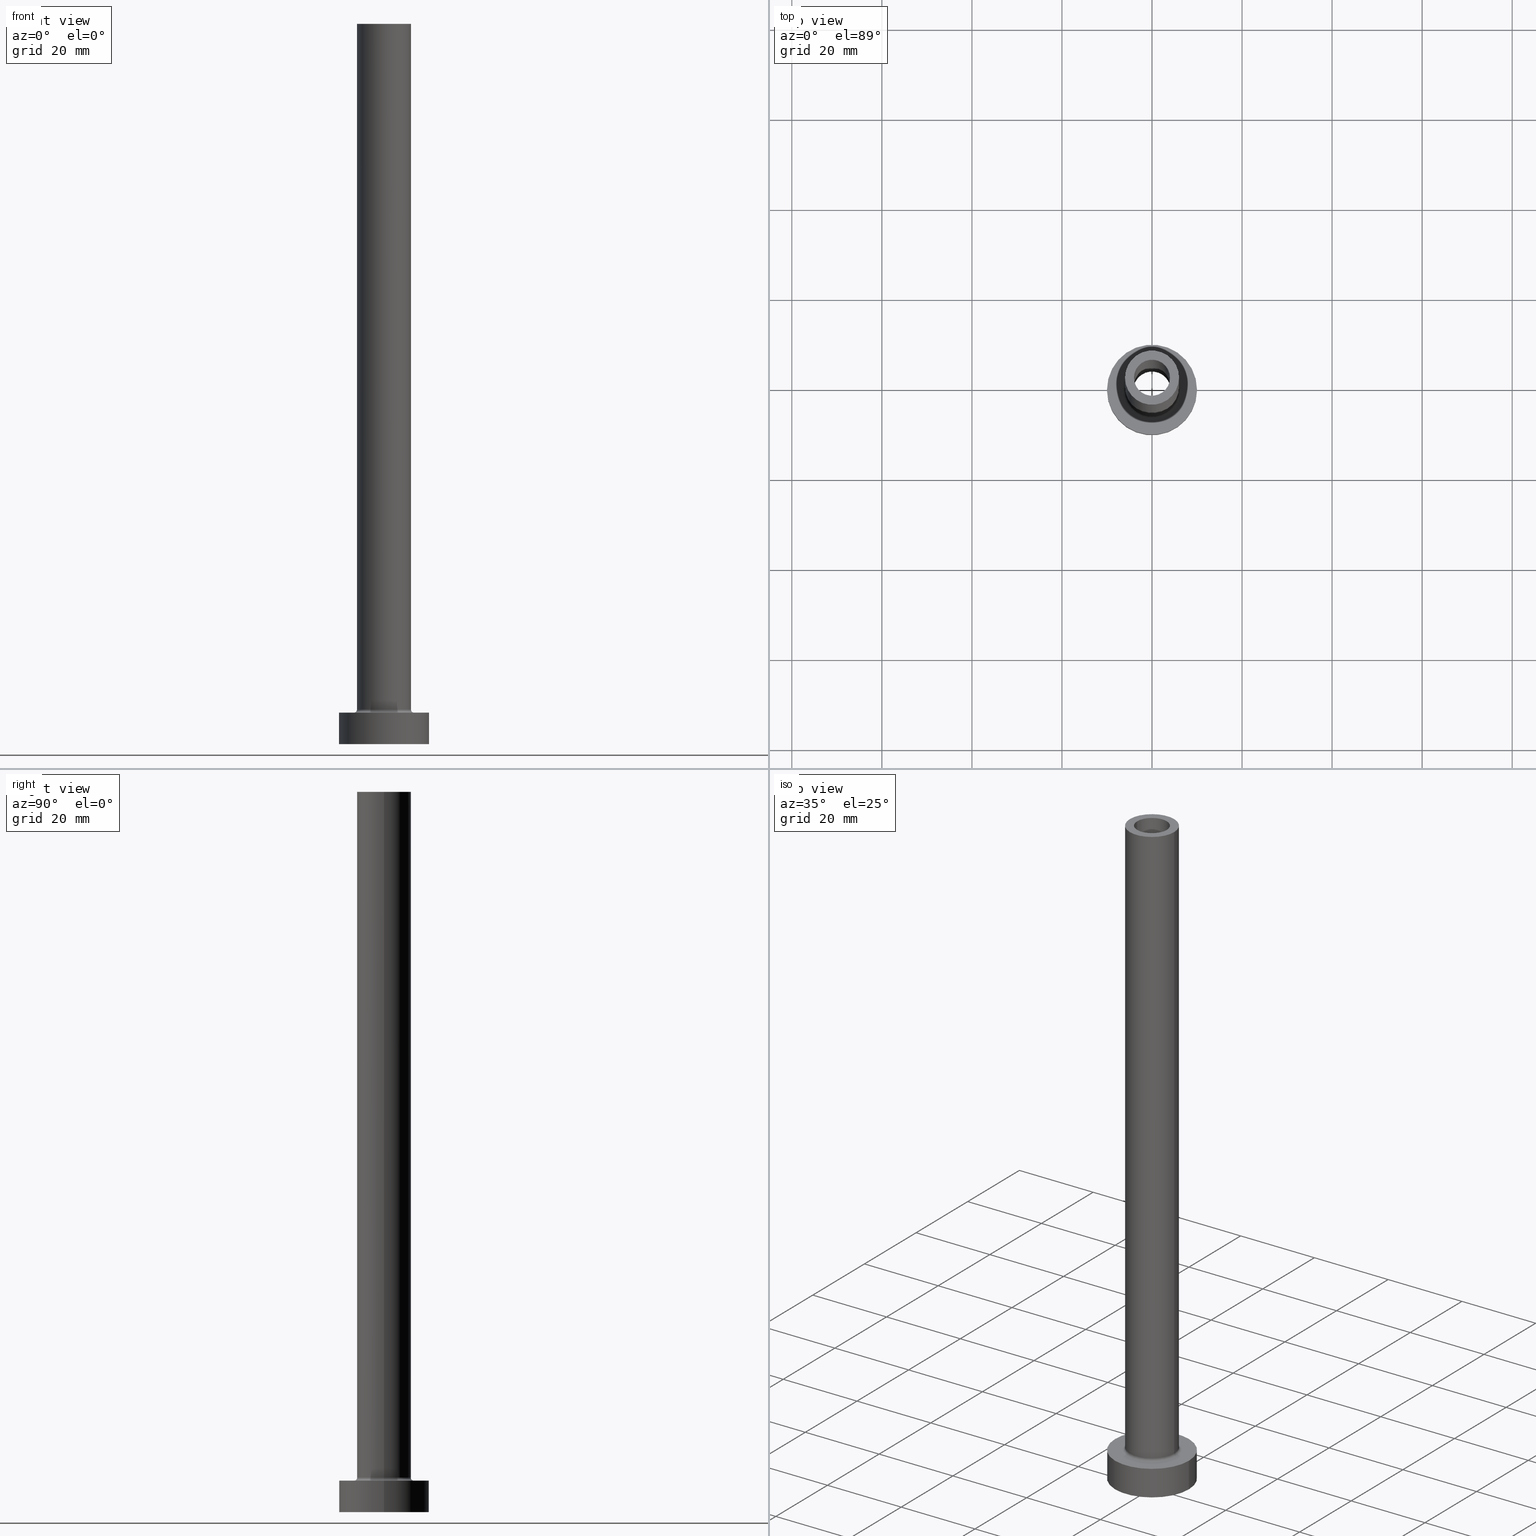
[diagram: canonical four-view strip — front | top / right | iso, engineering-drawing reading convention]
A machine part, canonical four-view strip (front | top / right | iso — engineering-drawing reading convention). The complete STEP part file that produces these views, byte-faithful:
ISO-10303-21;
HEADER;
FILE_DESCRIPTION (( 'STEP AP203' ),
    '1' );
FILE_NAME ('e0b1.STEP',
    '2023-02-13T09:10:37',
    ( '' ),
    ( '' ),
    'SwSTEP 2.0',
    'SolidWorks 2019',
    '' );
FILE_SCHEMA (( 'CONFIG_CONTROL_DESIGN' ));
ENDSEC;

DATA;
#1 = DIRECTION ( 'NONE',  ( 1.000000000000000000, 0.000000000000000000, -0.000000000000000000 ) ) ;
#2 = PERSON ( 'NEUR�EN�', 'NEUR�EN�', 'NEUR�EN�', ('NEUR�EN�'), ('NEUR�EN�'), ('NEUR�EN�') ) ;
#3 = DIRECTION ( 'NONE',  ( 0.000000000000000000, 0.000000000000000000, -1.000000000000000000 ) ) ;
#4 = CARTESIAN_POINT ( 'NONE',  ( -6.700000000000001066, 8.205133554287267548E-16, 7.700000000000012612 ) ) ;
#5 = ORIENTED_EDGE ( 'NONE', *, *, #381, .T. ) ;
#6 = VECTOR ( 'NONE', #93, 1000.000000000000000 ) ;
#7 = PERSON_AND_ORGANIZATION_ROLE ( 'design_owner' ) ;
#8 = ORIENTED_EDGE ( 'NONE', *, *, #305, .F. ) ;
#9 = APPLICATION_PROTOCOL_DEFINITION ( 'international standard', 'config_control_design', 1994, #273 ) ;
#10 = ADVANCED_FACE ( 'NONE', ( #119 ), #366, .T. ) ;
#11 = CYLINDRICAL_SURFACE ( 'NONE', #160, 6.000000000000000888 ) ;
#12 = CARTESIAN_POINT ( 'NONE',  ( 0.000000000000000000, 0.000000000000000000, 160.0000000000000000 ) ) ;
#13 = ORIENTED_EDGE ( 'NONE', *, *, #113, .T. ) ;
#14 = ADVANCED_FACE ( 'NONE', ( #341 ), #11, .T. ) ;
#15 = AXIS2_PLACEMENT_3D ( 'NONE', #347, #197, #133 ) ;
#16 = PERSON_AND_ORGANIZATION ( #2, #345 ) ;
#17 = CARTESIAN_POINT ( 'NONE',  ( 0.000000000000000000, 0.000000000000000000, 160.0000000000000000 ) ) ;
#18 = VERTEX_POINT ( 'NONE', #268 ) ;
#19 = ADVANCED_FACE ( 'NONE', ( #373 ), #227, .F. ) ;
#20 = CARTESIAN_POINT ( 'NONE',  ( -4.150000000000000355, 0.000000000000000000, 115.0000000000000000 ) ) ;
#21 = ORIENTED_EDGE ( 'NONE', *, *, #127, .F. ) ;
#22 = CARTESIAN_POINT ( 'NONE',  ( 10.00000000000000000, 1.224646799147353256E-15, 7.000000000000000000 ) ) ;
#23 = ORIENTED_EDGE ( 'NONE', *, *, #298, .F. ) ;
#24 = DIRECTION ( 'NONE',  ( 0.000000000000000000, 0.000000000000000000, 1.000000000000000000 ) ) ;
#25 = ORIENTED_EDGE ( 'NONE', *, *, #333, .T. ) ;
#26 = FACE_OUTER_BOUND ( 'NONE', #56, .T. ) ;
#27 = ORIENTED_EDGE ( 'NONE', *, *, #265, .T. ) ;
#28 = EDGE_CURVE ( 'NONE', #66, #448, #280, .T. ) ;
#29 = AXIS2_PLACEMENT_3D ( 'NONE', #296, #248, #148 ) ;
#30 = CARTESIAN_POINT ( 'NONE',  ( 0.000000000000000000, 0.000000000000000000, 7.000000000000000000 ) ) ;
#31 = ADVANCED_BREP_SHAPE_REPRESENTATION ( 'e0b1', ( #391, #329 ), #307 ) ;
#32 = LOCAL_TIME ( 10, 10, 37.00000000000000000, #367 ) ;
#33 = DIRECTION ( 'NONE',  ( 1.000000000000000000, 0.000000000000000000, 0.000000000000000000 ) ) ;
#34 = PRODUCT ( 'e0b1', 'e0b1', '', ( #79 ) ) ;
#35 = DIRECTION ( 'NONE',  ( 0.000000000000000000, 0.000000000000000000, 1.000000000000000000 ) ) ;
#36 = FACE_BOUND ( 'NONE', #194, .T. ) ;
#37 = CIRCLE ( 'NONE', #177, 4.000000000000000000 ) ;
#38 = CIRCLE ( 'NONE', #121, 6.000000000000000888 ) ;
#39 = CC_DESIGN_SECURITY_CLASSIFICATION ( #200, ( #324 ) ) ;
#40 = CALENDAR_DATE ( 2023, 13, 2 ) ;
#41 = EDGE_CURVE ( 'NONE', #332, #313, #269, .T. ) ;
#42 = DIRECTION ( 'NONE',  ( -0.000000000000000000, -0.000000000000000000, -1.000000000000000000 ) ) ;
#43 = ORIENTED_EDGE ( 'NONE', *, *, #101, .T. ) ;
#44 = APPROVAL_DATE_TIME ( #78, #300 ) ;
#45 = CARTESIAN_POINT ( 'NONE',  ( -6.700000000000001066, 8.205133554287267548E-16, 7.000000000000006217 ) ) ;
#46 = VERTEX_POINT ( 'NONE', #88 ) ;
#47 = AXIS2_PLACEMENT_3D ( 'NONE', #393, #65, #357 ) ;
#48 = FACE_OUTER_BOUND ( 'NONE', #129, .T. ) ;
#49 = ORIENTED_EDGE ( 'NONE', *, *, #265, .F. ) ;
#50 = ADVANCED_FACE ( 'NONE', ( #187 ), #354, .T. ) ;
#51 = DIRECTION ( 'NONE',  ( -1.000000000000000000, 0.000000000000000000, 0.000000000000000000 ) ) ;
#52 = VERTEX_POINT ( 'NONE', #320 ) ;
#53 = APPROVAL_STATUS ( 'not_yet_approved' ) ;
#54 = FACE_OUTER_BOUND ( 'NONE', #299, .T. ) ;
#55 = CARTESIAN_POINT ( 'NONE',  ( -10.00000000000000000, 0.000000000000000000, 7.000000000000000000 ) ) ;
#56 = EDGE_LOOP ( 'NONE', ( #154, #402 ) ) ;
#57 = LINE ( 'NONE', #22, #370 ) ;
#58 = ORIENTED_EDGE ( 'NONE', *, *, #404, .T. ) ;
#59 = CARTESIAN_POINT ( 'NONE',  ( 0.000000000000000000, 0.000000000000000000, 0.000000000000000000 ) ) ;
#60 = ORIENTED_EDGE ( 'NONE', *, *, #404, .F. ) ;
#61 = CIRCLE ( 'NONE', #421, 4.150000000000000355 ) ;
#62 = AXIS2_PLACEMENT_3D ( 'NONE', #123, #272, #409 ) ;
#63 = DIRECTION ( 'NONE',  ( 0.000000000000000000, 0.000000000000000000, 1.000000000000000000 ) ) ;
#64 = ORIENTED_EDGE ( 'NONE', *, *, #262, .F. ) ;
#65 = DIRECTION ( 'NONE',  ( 0.000000000000000000, 0.000000000000000000, 1.000000000000000000 ) ) ;
#66 = VERTEX_POINT ( 'NONE', #162 ) ;
#67 = DIRECTION ( 'NONE',  ( 1.000000000000000000, 0.000000000000000000, 0.000000000000000000 ) ) ;
#68 = CIRCLE ( 'NONE', #223, 4.150000000000000355 ) ;
#69 = CARTESIAN_POINT ( 'NONE',  ( -6.000000000000000888, 0.000000000000000000, 160.0000000000000000 ) ) ;
#70 = AXIS2_PLACEMENT_3D ( 'NONE', #169, #167, #136 ) ;
#71 = ADVANCED_FACE ( 'NONE', ( #351, #205 ), #164, .F. ) ;
#72 = FACE_OUTER_BOUND ( 'NONE', #204, .T. ) ;
#73 = CARTESIAN_POINT ( 'NONE',  ( -6.000000000000000888, 0.000000000000000000, 160.0000000000000000 ) ) ;
#74 = FACE_OUTER_BOUND ( 'NONE', #387, .T. ) ;
#75 = CIRCLE ( 'NONE', #196, 6.700000000000001066 ) ;
#76 = DIRECTION ( 'NONE',  ( 0.000000000000000000, -1.000000000000000000, 0.000000000000000000 ) ) ;
#77 = VERTEX_POINT ( 'NONE', #346 ) ;
#78 = DATE_AND_TIME ( #213, #32 ) ;
#79 = MECHANICAL_CONTEXT ( 'NONE', #418, 'mechanical' ) ;
#80 = CARTESIAN_POINT ( 'NONE',  ( 0.000000000000000000, 0.000000000000000000, 160.0000000000000000 ) ) ;
#81 = UNCERTAINTY_MEASURE_WITH_UNIT (LENGTH_MEASURE( 1.000000000000000082E-05 ), #117, 'distance_accuracy_value', 'NONE');
#82 = CALENDAR_DATE ( 2023, 13, 2 ) ;
#83 = ORIENTED_EDGE ( 'NONE', *, *, #28, .T. ) ;
#84 = TOROIDAL_SURFACE ( 'NONE', #336, 6.700000000000001066, 0.6999999999999999556 ) ;
#85 = ADVANCED_FACE ( 'NONE', ( #125 ), #309, .F. ) ;
#86 = CARTESIAN_POINT ( 'NONE',  ( -10.00000000000000000, 0.000000000000000000, 0.000000000000000000 ) ) ;
#87 = APPROVAL_DATE_TIME ( #195, #396 ) ;
#88 = CARTESIAN_POINT ( 'NONE',  ( 4.000000000000000000, 4.898587196589411843E-16, 115.0000000000000000 ) ) ;
#89 = CARTESIAN_POINT ( 'NONE',  ( 4.150000000000000355, 5.082284216461515156E-16, 126.7379725676967013 ) ) ;
#90 = ORIENTED_EDGE ( 'NONE', *, *, #199, .T. ) ;
#91 = AXIS2_PLACEMENT_3D ( 'NONE', #139, #245, #318 ) ;
#92 = AXIS2_PLACEMENT_3D ( 'NONE', #331, #35, #358 ) ;
#93 = DIRECTION ( 'NONE',  ( -0.000000000000000000, -0.000000000000000000, -1.000000000000000000 ) ) ;
#94 = ORIENTED_EDGE ( 'NONE', *, *, #428, .F. ) ;
#95 = FACE_OUTER_BOUND ( 'NONE', #384, .T. ) ;
#96 = CC_DESIGN_DATE_AND_TIME_ASSIGNMENT ( #389, #180, ( #200 ) ) ;
#97 = ORIENTED_EDGE ( 'NONE', *, *, #199, .F. ) ;
#98 = DIRECTION ( 'NONE',  ( 1.000000000000000000, 0.000000000000000000, 0.000000000000000000 ) ) ;
#99 = CIRCLE ( 'NONE', #229, 10.00000000000000000 ) ;
#100 = AXIS2_PLACEMENT_3D ( 'NONE', #369, #233, #343 ) ;
#101 = EDGE_CURVE ( 'NONE', #66, #382, #38, .T. ) ;
#102 = FACE_BOUND ( 'NONE', #446, .T. ) ;
#103 = ORIENTED_EDGE ( 'NONE', *, *, #113, .F. ) ;
#104 = CARTESIAN_POINT ( 'NONE',  ( 0.000000000000000000, 0.000000000000000000, 0.000000000000000000 ) ) ;
#105 = DIRECTION ( 'NONE',  ( 0.000000000000000000, 0.000000000000000000, 1.000000000000000000 ) ) ;
#106 = EDGE_CURVE ( 'NONE', #407, #304, #109, .T. ) ;
#107 = AXIS2_PLACEMENT_3D ( 'NONE', #436, #76, #152 ) ;
#108 = DIRECTION ( 'NONE',  ( -0.000000000000000000, -0.000000000000000000, -1.000000000000000000 ) ) ;
#109 = CIRCLE ( 'NONE', #423, 10.00000000000000000 ) ;
#110 = DIRECTION ( 'NONE',  ( 1.000000000000000000, 0.000000000000000000, 0.000000000000000000 ) ) ;
#111 = CARTESIAN_POINT ( 'NONE',  ( 0.000000000000000000, 0.000000000000000000, 160.0000000000000000 ) ) ;
#112 = CYLINDRICAL_SURFACE ( 'NONE', #287, 4.150000000000000355 ) ;
#113 = EDGE_CURVE ( 'NONE', #173, #448, #75, .T. ) ;
#114 = CC_DESIGN_APPROVAL ( #396, ( #324 ) ) ;
#115 = EDGE_CURVE ( 'NONE', #304, #407, #257, .T. ) ;
#116 = ORIENTED_EDGE ( 'NONE', *, *, #163, .F. ) ;
#117 =( LENGTH_UNIT ( ) NAMED_UNIT ( * ) SI_UNIT ( .MILLI., .METRE. ) );
#118 = ORIENTED_EDGE ( 'NONE', *, *, #170, .T. ) ;
#119 = FACE_OUTER_BOUND ( 'NONE', #209, .T. ) ;
#120 = VECTOR ( 'NONE', #416, 1000.000000000000000 ) ;
#121 = AXIS2_PLACEMENT_3D ( 'NONE', #419, #24, #414 ) ;
#122 = COORDINATED_UNIVERSAL_TIME_OFFSET ( 1, 0, .AHEAD. ) ;
#123 = CARTESIAN_POINT ( 'NONE',  ( 0.000000000000000000, 0.000000000000000000, 160.0000000000000000 ) ) ;
#124 = DESIGN_CONTEXT ( 'detailed design', #273, 'design' ) ;
#125 = FACE_OUTER_BOUND ( 'NONE', #454, .T. ) ;
#126 = EDGE_LOOP ( 'NONE', ( #27, #247 ) ) ;
#127 = EDGE_CURVE ( 'NONE', #439, #407, #239, .T. ) ;
#128 = CARTESIAN_POINT ( 'NONE',  ( 6.700000000000001066, 0.000000000000000000, 7.000000000000006217 ) ) ;
#129 = EDGE_LOOP ( 'NONE', ( #279, #348, #371, #206 ) ) ;
#130 = CIRCLE ( 'NONE', #315, 6.700000000000001066 ) ;
#131 = AXIS2_PLACEMENT_3D ( 'NONE', #285, #451, #312 ) ;
#132 = CC_DESIGN_PERSON_AND_ORGANIZATION_ASSIGNMENT ( #16, #310, ( #324 ) ) ;
#133 = DIRECTION ( 'NONE',  ( 1.000000000000000000, 0.000000000000000000, -0.000000000000000000 ) ) ;
#134 = ADVANCED_FACE ( 'NONE', ( #283 ), #445, .F. ) ;
#135 = VERTEX_POINT ( 'NONE', #453 ) ;
#136 = DIRECTION ( 'NONE',  ( 1.000000000000000000, 0.000000000000000000, -0.000000000000000000 ) ) ;
#137 = ORIENTED_EDGE ( 'NONE', *, *, #138, .F. ) ;
#138 = EDGE_CURVE ( 'NONE', #439, #321, #243, .T. ) ;
#139 = CARTESIAN_POINT ( 'NONE',  ( 0.000000000000000000, 0.000000000000000000, 0.000000000000000000 ) ) ;
#140 = EDGE_LOOP ( 'NONE', ( #403, #118, #282, #94 ) ) ;
#141 = VECTOR ( 'NONE', #108, 1000.000000000000000 ) ;
#142 = DIRECTION ( 'NONE',  ( 0.000000000000000000, 0.000000000000000000, 1.000000000000000000 ) ) ;
#143 = CARTESIAN_POINT ( 'NONE',  ( 0.000000000000000000, 0.000000000000000000, 160.0000000000000000 ) ) ;
#144 = PRODUCT_DEFINITION_SHAPE ( 'NONE', 'NONE',  #146 ) ;
#145 = DIRECTION ( 'NONE',  ( -0.000000000000000000, -0.000000000000000000, -1.000000000000000000 ) ) ;
#146 = PRODUCT_DEFINITION ( 'NEZN�M�', '', #324, #124 ) ;
#147 = APPROVAL ( #399, 'NEUR�EN�' ) ;
#148 = DIRECTION ( 'NONE',  ( 1.000000000000000000, 0.000000000000000000, 0.000000000000000000 ) ) ;
#149 = DIRECTION ( 'NONE',  ( 0.000000000000000000, 0.000000000000000000, 1.000000000000000000 ) ) ;
#150 = DIRECTION ( 'NONE',  ( 1.224646799147353207E-16, 1.000000000000000000, -0.000000000000000000 ) ) ;
#151 = SHAPE_DEFINITION_REPRESENTATION ( #144, #31 ) ;
#152 = DIRECTION ( 'NONE',  ( 0.000000000000000000, 0.000000000000000000, -1.000000000000000000 ) ) ;
#153 = CIRCLE ( 'NONE', #406, 6.000000000000000888 ) ;
#154 = ORIENTED_EDGE ( 'NONE', *, *, #106, .F. ) ;
#155 = CLOSED_SHELL ( 'NONE', ( #134, #19, #214, #10, #50, #270, #156, #293, #14, #355, #85, #397, #71, #410 ) ) ;
#156 = ADVANCED_FACE ( 'NONE', ( #102, #54 ), #277, .T. ) ;
#157 = DIRECTION ( 'NONE',  ( -1.000000000000000000, 0.000000000000000000, 0.000000000000000000 ) ) ;
#158 = CARTESIAN_POINT ( 'NONE',  ( -4.000000000000000000, 0.000000000000000000, 115.0000000000000000 ) ) ;
#159 = VECTOR ( 'NONE', #447, 1000.000000000000000 ) ;
#160 = AXIS2_PLACEMENT_3D ( 'NONE', #80, #375, #157 ) ;
#161 = PERSON_AND_ORGANIZATION_ROLE ( 'creator' ) ;
#162 = CARTESIAN_POINT ( 'NONE',  ( -6.000000000000000888, 0.000000000000000000, 7.700000000000012612 ) ) ;
#163 = EDGE_CURVE ( 'NONE', #321, #304, #57, .T. ) ;
#164 = PLANE ( 'NONE',  #70 ) ;
#165 = ORIENTED_EDGE ( 'NONE', *, *, #41, .T. ) ;
#166 = CC_DESIGN_DATE_AND_TIME_ASSIGNMENT ( #228, #440, ( #146 ) ) ;
#167 = DIRECTION ( 'NONE',  ( 0.000000000000000000, 0.000000000000000000, 1.000000000000000000 ) ) ;
#168 = ORIENTED_EDGE ( 'NONE', *, *, #101, .F. ) ;
#169 = CARTESIAN_POINT ( 'NONE',  ( 0.000000000000000000, 0.000000000000000000, 115.0000000000000000 ) ) ;
#170 = EDGE_CURVE ( 'NONE', #135, #77, #450, .T. ) ;
#171 = VERTEX_POINT ( 'NONE', #201 ) ;
#172 = DIRECTION ( 'NONE',  ( 0.000000000000000000, 0.000000000000000000, -1.000000000000000000 ) ) ;
#173 = VERTEX_POINT ( 'NONE', #128 ) ;
#174 = CARTESIAN_POINT ( 'NONE',  ( 0.000000000000000000, 0.000000000000000000, 160.0000000000000000 ) ) ;
#175 = EDGE_CURVE ( 'NONE', #18, #52, #237, .T. ) ;
#176 = VERTEX_POINT ( 'NONE', #20 ) ;
#177 = AXIS2_PLACEMENT_3D ( 'NONE', #111, #431, #362 ) ;
#178 = CARTESIAN_POINT ( 'NONE',  ( 10.00000000000000000, 1.224646799147353256E-15, 7.000000000000000000 ) ) ;
#179 = DIRECTION ( 'NONE',  ( 1.000000000000000000, 0.000000000000000000, 0.000000000000000000 ) ) ;
#180 = DATE_TIME_ROLE ( 'classification_date' ) ;
#181 = CC_DESIGN_PERSON_AND_ORGANIZATION_ASSIGNMENT ( #344, #161, ( #324 ) ) ;
#182 = CARTESIAN_POINT ( 'NONE',  ( 4.000000000000000000, 4.898587196589411843E-16, 160.0000000000000000 ) ) ;
#183 = CC_DESIGN_APPROVAL ( #147, ( #146 ) ) ;
#184 = DIRECTION ( 'NONE',  ( 0.000000000000000000, 0.000000000000000000, -1.000000000000000000 ) ) ;
#185 = CC_DESIGN_APPROVAL ( #300, ( #200 ) ) ;
#186 = DIRECTION ( 'NONE',  ( 1.000000000000000000, 0.000000000000000000, 0.000000000000000000 ) ) ;
#187 = FACE_OUTER_BOUND ( 'NONE', #437, .T. ) ;
#188 = CARTESIAN_POINT ( 'NONE',  ( 6.000000000000000888, 7.347880794884120722E-16, 7.700000000000012612 ) ) ;
#189 = ORIENTED_EDGE ( 'NONE', *, *, #249, .F. ) ;
#190 = VECTOR ( 'NONE', #184, 1000.000000000000000 ) ;
#191 = PERSON_AND_ORGANIZATION ( #2, #345 ) ;
#192 = DIRECTION ( 'NONE',  ( -0.000000000000000000, -0.000000000000000000, -1.000000000000000000 ) ) ;
#193 = CARTESIAN_POINT ( 'NONE',  ( 0.000000000000000000, 0.000000000000000000, 7.000000000000000000 ) ) ;
#194 = EDGE_LOOP ( 'NONE', ( #412, #264 ) ) ;
#195 = DATE_AND_TIME ( #271, #400 ) ;
#196 = AXIS2_PLACEMENT_3D ( 'NONE', #311, #208, #98 ) ;
#197 = DIRECTION ( 'NONE',  ( 0.000000000000000000, 0.000000000000000000, 1.000000000000000000 ) ) ;
#198 = CIRCLE ( 'NONE', #29, 4.150000000000000355 ) ;
#199 = EDGE_CURVE ( 'NONE', #18, #452, #314, .T. ) ;
#200 = SECURITY_CLASSIFICATION ( '', '', #374 ) ;
#201 = CARTESIAN_POINT ( 'NONE',  ( -4.150000000000000355, 0.000000000000000000, 0.000000000000000000 ) ) ;
#202 = ORIENTED_EDGE ( 'NONE', *, *, #381, .F. ) ;
#203 = DIRECTION ( 'NONE',  ( 0.000000000000000000, 0.000000000000000000, 1.000000000000000000 ) ) ;
#204 = EDGE_LOOP ( 'NONE', ( #116, #137, #339, #284 ) ) ;
#205 = FACE_OUTER_BOUND ( 'NONE', #415, .T. ) ;
#206 = ORIENTED_EDGE ( 'NONE', *, *, #276, .T. ) ;
#207 = CIRCLE ( 'NONE', #47, 4.150000000000000355 ) ;
#208 = DIRECTION ( 'NONE',  ( -0.000000000000000000, -0.000000000000000000, -1.000000000000000000 ) ) ;
#209 = EDGE_LOOP ( 'NONE', ( #23, #441, #5, #238 ) ) ;
#210 = PLANE ( 'NONE',  #461 ) ;
#211 = ORIENTED_EDGE ( 'NONE', *, *, #175, .T. ) ;
#212 = DIRECTION ( 'NONE',  ( -0.000000000000000000, -0.000000000000000000, -1.000000000000000000 ) ) ;
#213 = CALENDAR_DATE ( 2023, 13, 2 ) ;
#214 = ADVANCED_FACE ( 'NONE', ( #95 ), #84, .F. ) ;
#215 = AXIS2_PLACEMENT_3D ( 'NONE', #383, #172, #242 ) ;
#216 = AXIS2_PLACEMENT_3D ( 'NONE', #230, #192, #261 ) ;
#217 = DIRECTION ( 'NONE',  ( 1.000000000000000000, 0.000000000000000000, -0.000000000000000000 ) ) ;
#218 = PERSON_AND_ORGANIZATION ( #2, #345 ) ;
#219 = DIRECTION ( 'NONE',  ( 0.000000000000000000, 0.000000000000000000, 1.000000000000000000 ) ) ;
#220 = EDGE_CURVE ( 'NONE', #46, #452, #394, .T. ) ;
#221 = DIRECTION ( 'NONE',  ( 0.000000000000000000, 0.000000000000000000, 1.000000000000000000 ) ) ;
#222 = EDGE_CURVE ( 'NONE', #52, #18, #37, .T. ) ;
#223 = AXIS2_PLACEMENT_3D ( 'NONE', #360, #145, #292 ) ;
#224 =( NAMED_UNIT ( * ) SI_UNIT ( $, .STERADIAN. ) SOLID_ANGLE_UNIT ( ) );
#225 = ORIENTED_EDGE ( 'NONE', *, *, #298, .T. ) ;
#226 = DIRECTION ( 'NONE',  ( 0.000000000000000000, 0.000000000000000000, -1.000000000000000000 ) ) ;
#227 = CYLINDRICAL_SURFACE ( 'NONE', #100, 4.150000000000000355 ) ;
#228 = DATE_AND_TIME ( #82, #443 ) ;
#229 = AXIS2_PLACEMENT_3D ( 'NONE', #30, #455, #33 ) ;
#230 = CARTESIAN_POINT ( 'NONE',  ( 0.000000000000000000, 0.000000000000000000, 160.0000000000000000 ) ) ;
#231 = EDGE_CURVE ( 'NONE', #176, #135, #198, .T. ) ;
#232 =( NAMED_UNIT ( * ) PLANE_ANGLE_UNIT ( ) SI_UNIT ( $, .RADIAN. ) );
#233 = DIRECTION ( 'NONE',  ( 0.000000000000000000, 0.000000000000000000, -1.000000000000000000 ) ) ;
#234 = APPROVAL_ROLE ( '' ) ;
#235 = ORIENTED_EDGE ( 'NONE', *, *, #456, .F. ) ;
#236 = CARTESIAN_POINT ( 'NONE',  ( 0.000000000000000000, 0.000000000000000000, 7.700000000000012612 ) ) ;
#237 = CIRCLE ( 'NONE', #430, 4.000000000000000000 ) ;
#238 = ORIENTED_EDGE ( 'NONE', *, *, #333, .F. ) ;
#239 = LINE ( 'NONE', #55, #6 ) ;
#240 = DIRECTION ( 'NONE',  ( 1.000000000000000000, 0.000000000000000000, 0.000000000000000000 ) ) ;
#241 = ORIENTED_EDGE ( 'NONE', *, *, #138, .T. ) ;
#242 = DIRECTION ( 'NONE',  ( -1.000000000000000000, 0.000000000000000000, 0.000000000000000000 ) ) ;
#243 = CIRCLE ( 'NONE', #376, 10.00000000000000000 ) ;
#244 = APPROVAL_PERSON_ORGANIZATION ( #408, #396, #234 ) ;
#245 = DIRECTION ( 'NONE',  ( 0.000000000000000000, 0.000000000000000000, 1.000000000000000000 ) ) ;
#246 = PERSON_AND_ORGANIZATION_ROLE ( 'classification_officer' ) ;
#247 = ORIENTED_EDGE ( 'NONE', *, *, #220, .T. ) ;
#248 = DIRECTION ( 'NONE',  ( 0.000000000000000000, 0.000000000000000000, 1.000000000000000000 ) ) ;
#249 = EDGE_CURVE ( 'NONE', #321, #439, #99, .T. ) ;
#250 = DIRECTION ( 'NONE',  ( 0.000000000000000000, 0.000000000000000000, 1.000000000000000000 ) ) ;
#251 = CC_DESIGN_PERSON_AND_ORGANIZATION_ASSIGNMENT ( #191, #340, ( #146 ) ) ;
#252 = CIRCLE ( 'NONE', #386, 6.000000000000000888 ) ;
#253 = CARTESIAN_POINT ( 'NONE',  ( 0.000000000000000000, 0.000000000000000000, 7.700000000000012612 ) ) ;
#254 = APPROVAL_PERSON_ORGANIZATION ( #426, #300, #326 ) ;
#255 = DIRECTION ( 'NONE',  ( -0.000000000000000000, -0.000000000000000000, -1.000000000000000000 ) ) ;
#256 = PERSON_AND_ORGANIZATION ( #2, #345 ) ;
#257 = CIRCLE ( 'NONE', #91, 10.00000000000000000 ) ;
#258 = VECTOR ( 'NONE', #212, 1000.000000000000000 ) ;
#259 = CYLINDRICAL_SURFACE ( 'NONE', #294, 4.000000000000000000 ) ;
#260 = ORIENTED_EDGE ( 'NONE', *, *, #115, .T. ) ;
#261 = DIRECTION ( 'NONE',  ( -1.000000000000000000, 0.000000000000000000, 0.000000000000000000 ) ) ;
#262 = EDGE_CURVE ( 'NONE', #52, #46, #429, .T. ) ;
#263 = DIRECTION ( 'NONE',  ( 1.000000000000000000, 0.000000000000000000, 0.000000000000000000 ) ) ;
#264 = ORIENTED_EDGE ( 'NONE', *, *, #222, .F. ) ;
#265 = EDGE_CURVE ( 'NONE', #452, #46, #359, .T. ) ;
#266 = CARTESIAN_POINT ( 'NONE',  ( -4.150000000000000355, 0.000000000000000000, 126.7379725676967013 ) ) ;
#267 = APPROVAL_PERSON_ORGANIZATION ( #256, #147, #301 ) ;
#268 = CARTESIAN_POINT ( 'NONE',  ( -4.000000000000000000, 0.000000000000000000, 160.0000000000000000 ) ) ;
#269 = CIRCLE ( 'NONE', #62, 6.000000000000000888 ) ;
#270 = ADVANCED_FACE ( 'NONE', ( #72 ), #425, .T. ) ;
#271 = CALENDAR_DATE ( 2023, 13, 2 ) ;
#272 = DIRECTION ( 'NONE',  ( 0.000000000000000000, 0.000000000000000000, 1.000000000000000000 ) ) ;
#273 = APPLICATION_CONTEXT ( 'configuration controlled 3d designs of mechanical parts and assemblies' ) ;
#274 = DIRECTION ( 'NONE',  ( 0.000000000000000000, 0.000000000000000000, 1.000000000000000000 ) ) ;
#275 = EDGE_LOOP ( 'NONE', ( #211, #335, #49, #97 ) ) ;
#276 = EDGE_CURVE ( 'NONE', #171, #77, #61, .T. ) ;
#277 = PLANE ( 'NONE',  #15 ) ;
#278 = AXIS2_PLACEMENT_3D ( 'NONE', #457, #388, #322 ) ;
#279 = ORIENTED_EDGE ( 'NONE', *, *, #170, .F. ) ;
#280 = CIRCLE ( 'NONE', #288, 0.7000000000000000666 ) ;
#281 = CARTESIAN_POINT ( 'NONE',  ( -4.000000000000000000, 0.000000000000000000, 160.0000000000000000 ) ) ;
#282 = ORIENTED_EDGE ( 'NONE', *, *, #379, .T. ) ;
#283 = FACE_OUTER_BOUND ( 'NONE', #275, .T. ) ;
#284 = ORIENTED_EDGE ( 'NONE', *, *, #106, .T. ) ;
#285 = CARTESIAN_POINT ( 'NONE',  ( 0.000000000000000000, 0.000000000000000000, 7.000000000000000000 ) ) ;
#286 = ORIENTED_EDGE ( 'NONE', *, *, #379, .F. ) ;
#287 = AXIS2_PLACEMENT_3D ( 'NONE', #433, #3, #51 ) ;
#288 = AXIS2_PLACEMENT_3D ( 'NONE', #4, #150, #444 ) ;
#289 = LOCAL_TIME ( 10, 10, 37.00000000000000000, #323 ) ;
#290 = CARTESIAN_POINT ( 'NONE',  ( 6.000000000000000888, 7.347880794884120722E-16, 160.0000000000000000 ) ) ;
#291 = CARTESIAN_POINT ( 'NONE',  ( 0.000000000000000000, 0.000000000000000000, 115.0000000000000000 ) ) ;
#292 = DIRECTION ( 'NONE',  ( 1.000000000000000000, 0.000000000000000000, 0.000000000000000000 ) ) ;
#293 = ADVANCED_FACE ( 'NONE', ( #328, #26 ), #392, .F. ) ;
#294 = AXIS2_PLACEMENT_3D ( 'NONE', #12, #226, #365 ) ;
#295 = CARTESIAN_POINT ( 'NONE',  ( 0.000000000000000000, 0.000000000000000000, 7.700000000000012612 ) ) ;
#296 = CARTESIAN_POINT ( 'NONE',  ( 0.000000000000000000, 0.000000000000000000, 115.0000000000000000 ) ) ;
#297 = CARTESIAN_POINT ( 'NONE',  ( -10.00000000000000000, 0.000000000000000000, 7.000000000000000000 ) ) ;
#298 = EDGE_CURVE ( 'NONE', #313, #332, #252, .T. ) ;
#299 = EDGE_LOOP ( 'NONE', ( #241, #390 ) ) ;
#300 = APPROVAL ( #334, 'NEUR�EN�' ) ;
#301 = APPROVAL_ROLE ( '' ) ;
#302 = ORIENTED_EDGE ( 'NONE', *, *, #456, .T. ) ;
#303 = COORDINATED_UNIVERSAL_TIME_OFFSET ( 1, 0, .AHEAD. ) ;
#304 = VERTEX_POINT ( 'NONE', #427 ) ;
#305 = EDGE_CURVE ( 'NONE', #313, #382, #460, .T. ) ;
#306 = EDGE_CURVE ( 'NONE', #135, #176, #207, .T. ) ;
#307 =( GEOMETRIC_REPRESENTATION_CONTEXT ( 3 ) GLOBAL_UNCERTAINTY_ASSIGNED_CONTEXT ( ( #81 ) ) GLOBAL_UNIT_ASSIGNED_CONTEXT ( ( #117, #232, #224 ) ) REPRESENTATION_CONTEXT ( 'NONE', 'WORKASPACE' ) );
#308 = ORIENTED_EDGE ( 'NONE', *, *, #231, .F. ) ;
#309 = TOROIDAL_SURFACE ( 'NONE', #330, 6.700000000000001066, 0.6999999999999999556 ) ;
#310 = PERSON_AND_ORGANIZATION_ROLE ( 'design_supplier' ) ;
#311 = CARTESIAN_POINT ( 'NONE',  ( 0.000000000000000000, 0.000000000000000000, 7.000000000000000000 ) ) ;
#312 = DIRECTION ( 'NONE',  ( -1.000000000000000000, 0.000000000000000000, 0.000000000000000000 ) ) ;
#313 = VERTEX_POINT ( 'NONE', #290 ) ;
#314 = LINE ( 'NONE', #281, #120 ) ;
#315 = AXIS2_PLACEMENT_3D ( 'NONE', #193, #42, #186 ) ;
#316 = EDGE_LOOP ( 'NONE', ( #8, #319, #25, #43 ) ) ;
#317 = CC_DESIGN_PERSON_AND_ORGANIZATION_ASSIGNMENT ( #368, #7, ( #34 ) ) ;
#318 = DIRECTION ( 'NONE',  ( 1.000000000000000000, 0.000000000000000000, 0.000000000000000000 ) ) ;
#319 = ORIENTED_EDGE ( 'NONE', *, *, #41, .F. ) ;
#320 = CARTESIAN_POINT ( 'NONE',  ( 4.000000000000000000, 4.898587196589411843E-16, 160.0000000000000000 ) ) ;
#321 = VERTEX_POINT ( 'NONE', #178 ) ;
#322 = DIRECTION ( 'NONE',  ( -1.000000000000000000, 0.000000000000000000, 0.000000000000000000 ) ) ;
#323 = COORDINATED_UNIVERSAL_TIME_OFFSET ( 1, 0, .AHEAD. ) ;
#324 = PRODUCT_DEFINITION_FORMATION_WITH_SPECIFIED_SOURCE ( 'LIBOVOLN�', '', #34, .NOT_KNOWN. ) ;
#325 = FACE_OUTER_BOUND ( 'NONE', #420, .T. ) ;
#326 = APPROVAL_ROLE ( '' ) ;
#327 = LINE ( 'NONE', #69, #141 ) ;
#328 = FACE_BOUND ( 'NONE', #378, .T. ) ;
#329 = AXIS2_PLACEMENT_3D ( 'NONE', #338, #149, #263 ) ;
#330 = AXIS2_PLACEMENT_3D ( 'NONE', #236, #203, #377 ) ;
#331 = CARTESIAN_POINT ( 'NONE',  ( 0.000000000000000000, 0.000000000000000000, 115.0000000000000000 ) ) ;
#332 = VERTEX_POINT ( 'NONE', #73 ) ;
#333 = EDGE_CURVE ( 'NONE', #332, #66, #327, .T. ) ;
#334 = APPROVAL_STATUS ( 'not_yet_approved' ) ;
#335 = ORIENTED_EDGE ( 'NONE', *, *, #262, .T. ) ;
#336 = AXIS2_PLACEMENT_3D ( 'NONE', #295, #250, #67 ) ;
#337 = CALENDAR_DATE ( 2023, 13, 2 ) ;
#338 = CARTESIAN_POINT ( 'NONE',  ( 0.000000000000000000, 0.000000000000000000, 0.000000000000000000 ) ) ;
#339 = ORIENTED_EDGE ( 'NONE', *, *, #127, .T. ) ;
#340 = PERSON_AND_ORGANIZATION_ROLE ( 'creator' ) ;
#341 = FACE_OUTER_BOUND ( 'NONE', #316, .T. ) ;
#342 = DIRECTION ( 'NONE',  ( 0.000000000000000000, 0.000000000000000000, -1.000000000000000000 ) ) ;
#343 = DIRECTION ( 'NONE',  ( -1.000000000000000000, 0.000000000000000000, 0.000000000000000000 ) ) ;
#344 = PERSON_AND_ORGANIZATION ( #2, #345 ) ;
#345 = ORGANIZATION ( 'NEUR�EN�', 'NEUR�EN�', '' ) ;
#346 = CARTESIAN_POINT ( 'NONE',  ( 4.150000000000000355, 5.082284216461515156E-16, 0.000000000000000000 ) ) ;
#347 = CARTESIAN_POINT ( 'NONE',  ( 0.000000000000000000, 0.000000000000000000, 7.000000000000000000 ) ) ;
#348 = ORIENTED_EDGE ( 'NONE', *, *, #306, .T. ) ;
#349 = DIRECTION ( 'NONE',  ( 1.000000000000000000, 0.000000000000000000, 0.000000000000000000 ) ) ;
#350 = ORIENTED_EDGE ( 'NONE', *, *, #28, .F. ) ;
#351 = FACE_BOUND ( 'NONE', #126, .T. ) ;
#352 = VECTOR ( 'NONE', #342, 1000.000000000000000 ) ;
#353 = ORIENTED_EDGE ( 'NONE', *, *, #276, .F. ) ;
#354 = CYLINDRICAL_SURFACE ( 'NONE', #131, 10.00000000000000000 ) ;
#355 = ADVANCED_FACE ( 'NONE', ( #36, #325 ), #210, .T. ) ;
#356 = ORIENTED_EDGE ( 'NONE', *, *, #306, .F. ) ;
#357 = DIRECTION ( 'NONE',  ( 1.000000000000000000, 0.000000000000000000, 0.000000000000000000 ) ) ;
#358 = DIRECTION ( 'NONE',  ( 1.000000000000000000, 0.000000000000000000, 0.000000000000000000 ) ) ;
#359 = CIRCLE ( 'NONE', #449, 4.000000000000000000 ) ;
#360 = CARTESIAN_POINT ( 'NONE',  ( 0.000000000000000000, 0.000000000000000000, 0.000000000000000000 ) ) ;
#361 = DIRECTION ( 'NONE',  ( 1.000000000000000000, 0.000000000000000000, 0.000000000000000000 ) ) ;
#362 = DIRECTION ( 'NONE',  ( 1.000000000000000000, 0.000000000000000000, 0.000000000000000000 ) ) ;
#363 = AXIS2_PLACEMENT_3D ( 'NONE', #104, #142, #1 ) ;
#364 = COORDINATED_UNIVERSAL_TIME_OFFSET ( 1, 0, .AHEAD. ) ;
#365 = DIRECTION ( 'NONE',  ( -1.000000000000000000, 0.000000000000000000, 0.000000000000000000 ) ) ;
#366 = CYLINDRICAL_SURFACE ( 'NONE', #216, 6.000000000000000888 ) ;
#367 = COORDINATED_UNIVERSAL_TIME_OFFSET ( 1, 0, .AHEAD. ) ;
#368 = PERSON_AND_ORGANIZATION ( #2, #345 ) ;
#369 = CARTESIAN_POINT ( 'NONE',  ( 0.000000000000000000, 0.000000000000000000, 126.7379725676967013 ) ) ;
#370 = VECTOR ( 'NONE', #411, 1000.000000000000000 ) ;
#371 = ORIENTED_EDGE ( 'NONE', *, *, #428, .T. ) ;
#372 = APPLICATION_PROTOCOL_DEFINITION ( 'international standard', 'config_control_design', 1994, #418 ) ;
#373 = FACE_OUTER_BOUND ( 'NONE', #140, .T. ) ;
#374 = SECURITY_CLASSIFICATION_LEVEL ( 'unclassified' ) ;
#375 = DIRECTION ( 'NONE',  ( -0.000000000000000000, -0.000000000000000000, -1.000000000000000000 ) ) ;
#376 = AXIS2_PLACEMENT_3D ( 'NONE', #385, #274, #422 ) ;
#377 = DIRECTION ( 'NONE',  ( 1.000000000000000000, 0.000000000000000000, 0.000000000000000000 ) ) ;
#378 = EDGE_LOOP ( 'NONE', ( #353, #286 ) ) ;
#379 = EDGE_CURVE ( 'NONE', #77, #171, #68, .T. ) ;
#380 = DIRECTION ( 'NONE',  ( 0.000000000000000000, 0.000000000000000000, 1.000000000000000000 ) ) ;
#381 = EDGE_CURVE ( 'NONE', #382, #66, #153, .T. ) ;
#382 = VERTEX_POINT ( 'NONE', #188 ) ;
#383 = CARTESIAN_POINT ( 'NONE',  ( 0.000000000000000000, 0.000000000000000000, 160.0000000000000000 ) ) ;
#384 = EDGE_LOOP ( 'NONE', ( #168, #83, #103, #235 ) ) ;
#385 = CARTESIAN_POINT ( 'NONE',  ( 0.000000000000000000, 0.000000000000000000, 7.000000000000000000 ) ) ;
#386 = AXIS2_PLACEMENT_3D ( 'NONE', #174, #398, #179 ) ;
#387 = EDGE_LOOP ( 'NONE', ( #64, #424, #90, #434 ) ) ;
#388 = DIRECTION ( 'NONE',  ( -0.000000000000000000, -0.000000000000000000, -1.000000000000000000 ) ) ;
#389 = DATE_AND_TIME ( #337, #289 ) ;
#390 = ORIENTED_EDGE ( 'NONE', *, *, #249, .T. ) ;
#391 = MANIFOLD_SOLID_BREP ( 'Odebrat vysunut�m4', #155 ) ;
#392 = PLANE ( 'NONE',  #363 ) ;
#393 = CARTESIAN_POINT ( 'NONE',  ( 0.000000000000000000, 0.000000000000000000, 115.0000000000000000 ) ) ;
#394 = CIRCLE ( 'NONE', #92, 4.000000000000000000 ) ;
#395 = CARTESIAN_POINT ( 'NONE',  ( 6.000000000000000888, 7.347880794884120722E-16, 160.0000000000000000 ) ) ;
#396 = APPROVAL ( #53, 'NEUR�EN�' ) ;
#397 = ADVANCED_FACE ( 'NONE', ( #48 ), #112, .F. ) ;
#398 = DIRECTION ( 'NONE',  ( 0.000000000000000000, 0.000000000000000000, 1.000000000000000000 ) ) ;
#399 = APPROVAL_STATUS ( 'not_yet_approved' ) ;
#400 = LOCAL_TIME ( 10, 10, 37.00000000000000000, #122 ) ;
#401 = LINE ( 'NONE', #266, #352 ) ;
#402 = ORIENTED_EDGE ( 'NONE', *, *, #115, .F. ) ;
#403 = ORIENTED_EDGE ( 'NONE', *, *, #231, .T. ) ;
#404 = EDGE_CURVE ( 'NONE', #448, #173, #130, .T. ) ;
#405 = APPROVAL_DATE_TIME ( #438, #147 ) ;
#406 = AXIS2_PLACEMENT_3D ( 'NONE', #253, #219, #361 ) ;
#407 = VERTEX_POINT ( 'NONE', #86 ) ;
#408 = PERSON_AND_ORGANIZATION ( #2, #345 ) ;
#409 = DIRECTION ( 'NONE',  ( 1.000000000000000000, 0.000000000000000000, 0.000000000000000000 ) ) ;
#410 = ADVANCED_FACE ( 'NONE', ( #74 ), #259, .F. ) ;
#411 = DIRECTION ( 'NONE',  ( -0.000000000000000000, -0.000000000000000000, -1.000000000000000000 ) ) ;
#412 = ORIENTED_EDGE ( 'NONE', *, *, #175, .F. ) ;
#413 = CIRCLE ( 'NONE', #107, 0.7000000000000000666 ) ;
#414 = DIRECTION ( 'NONE',  ( 1.000000000000000000, 0.000000000000000000, 0.000000000000000000 ) ) ;
#415 = EDGE_LOOP ( 'NONE', ( #308, #356 ) ) ;
#416 = DIRECTION ( 'NONE',  ( 0.000000000000000000, 0.000000000000000000, -1.000000000000000000 ) ) ;
#417 = ORIENTED_EDGE ( 'NONE', *, *, #163, .T. ) ;
#418 = APPLICATION_CONTEXT ( 'configuration controlled 3d designs of mechanical parts and assemblies' ) ;
#419 = CARTESIAN_POINT ( 'NONE',  ( 0.000000000000000000, 0.000000000000000000, 7.700000000000012612 ) ) ;
#420 = EDGE_LOOP ( 'NONE', ( #165, #225 ) ) ;
#421 = AXIS2_PLACEMENT_3D ( 'NONE', #459, #255, #110 ) ;
#422 = DIRECTION ( 'NONE',  ( 1.000000000000000000, 0.000000000000000000, 0.000000000000000000 ) ) ;
#423 = AXIS2_PLACEMENT_3D ( 'NONE', #59, #63, #240 ) ;
#424 = ORIENTED_EDGE ( 'NONE', *, *, #222, .T. ) ;
#425 = CYLINDRICAL_SURFACE ( 'NONE', #278, 10.00000000000000000 ) ;
#426 = PERSON_AND_ORGANIZATION ( #2, #345 ) ;
#427 = CARTESIAN_POINT ( 'NONE',  ( 10.00000000000000000, 1.224646799147353256E-15, 0.000000000000000000 ) ) ;
#428 = EDGE_CURVE ( 'NONE', #176, #171, #401, .T. ) ;
#429 = LINE ( 'NONE', #182, #190 ) ;
#430 = AXIS2_PLACEMENT_3D ( 'NONE', #17, #380, #349 ) ;
#431 = DIRECTION ( 'NONE',  ( 0.000000000000000000, 0.000000000000000000, 1.000000000000000000 ) ) ;
#432 = DIRECTION ( 'NONE',  ( 1.000000000000000000, 0.000000000000000000, 0.000000000000000000 ) ) ;
#433 = CARTESIAN_POINT ( 'NONE',  ( 0.000000000000000000, 0.000000000000000000, 126.7379725676967013 ) ) ;
#434 = ORIENTED_EDGE ( 'NONE', *, *, #220, .F. ) ;
#435 = LOCAL_TIME ( 10, 10, 37.00000000000000000, #364 ) ;
#436 = CARTESIAN_POINT ( 'NONE',  ( 6.700000000000001066, 0.000000000000000000, 7.700000000000012612 ) ) ;
#437 = EDGE_LOOP ( 'NONE', ( #189, #417, #260, #21 ) ) ;
#438 = DATE_AND_TIME ( #40, #435 ) ;
#439 = VERTEX_POINT ( 'NONE', #297 ) ;
#440 = DATE_TIME_ROLE ( 'creation_date' ) ;
#441 = ORIENTED_EDGE ( 'NONE', *, *, #305, .T. ) ;
#442 = CC_DESIGN_PERSON_AND_ORGANIZATION_ASSIGNMENT ( #218, #246, ( #200 ) ) ;
#443 = LOCAL_TIME ( 10, 10, 37.00000000000000000, #303 ) ;
#444 = DIRECTION ( 'NONE',  ( -1.000000000000000000, 1.224646799147353454E-16, 0.000000000000000000 ) ) ;
#445 = CYLINDRICAL_SURFACE ( 'NONE', #215, 4.000000000000000000 ) ;
#446 = EDGE_LOOP ( 'NONE', ( #13, #58 ) ) ;
#447 = DIRECTION ( 'NONE',  ( 0.000000000000000000, 0.000000000000000000, -1.000000000000000000 ) ) ;
#448 = VERTEX_POINT ( 'NONE', #45 ) ;
#449 = AXIS2_PLACEMENT_3D ( 'NONE', #291, #221, #432 ) ;
#450 = LINE ( 'NONE', #89, #159 ) ;
#451 = DIRECTION ( 'NONE',  ( -0.000000000000000000, -0.000000000000000000, -1.000000000000000000 ) ) ;
#452 = VERTEX_POINT ( 'NONE', #158 ) ;
#453 = CARTESIAN_POINT ( 'NONE',  ( 4.150000000000000355, 5.082284216461515156E-16, 115.0000000000000000 ) ) ;
#454 = EDGE_LOOP ( 'NONE', ( #350, #202, #302, #60 ) ) ;
#455 = DIRECTION ( 'NONE',  ( 0.000000000000000000, 0.000000000000000000, 1.000000000000000000 ) ) ;
#456 = EDGE_CURVE ( 'NONE', #382, #173, #413, .T. ) ;
#457 = CARTESIAN_POINT ( 'NONE',  ( 0.000000000000000000, 0.000000000000000000, 7.000000000000000000 ) ) ;
#458 = PRODUCT_RELATED_PRODUCT_CATEGORY ( 'detail', '', ( #34 ) ) ;
#459 = CARTESIAN_POINT ( 'NONE',  ( 0.000000000000000000, 0.000000000000000000, 0.000000000000000000 ) ) ;
#460 = LINE ( 'NONE', #395, #258 ) ;
#461 = AXIS2_PLACEMENT_3D ( 'NONE', #143, #105, #217 ) ;
ENDSEC;
END-ISO-10303-21;
